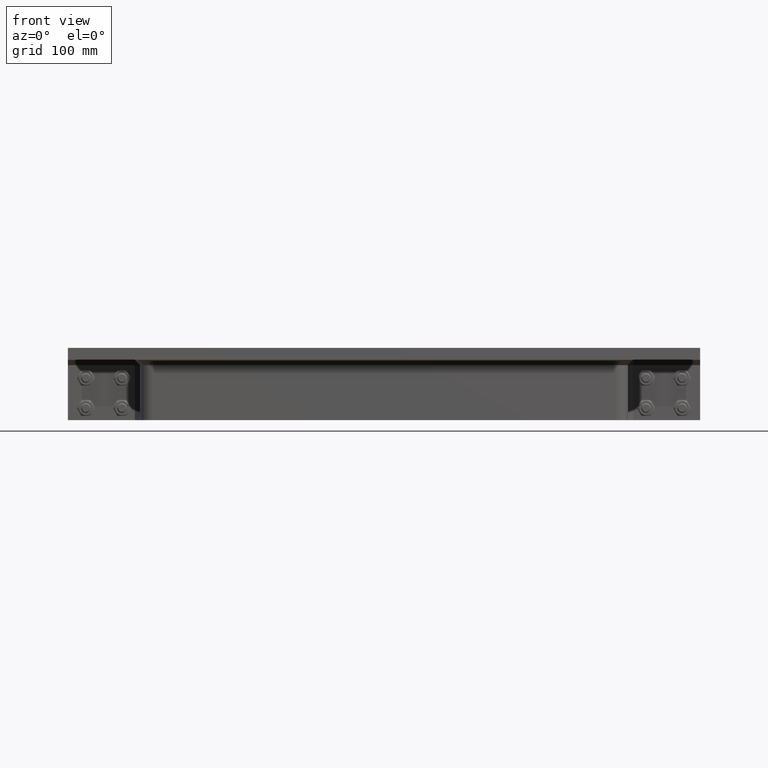
[diagram: clean part render]
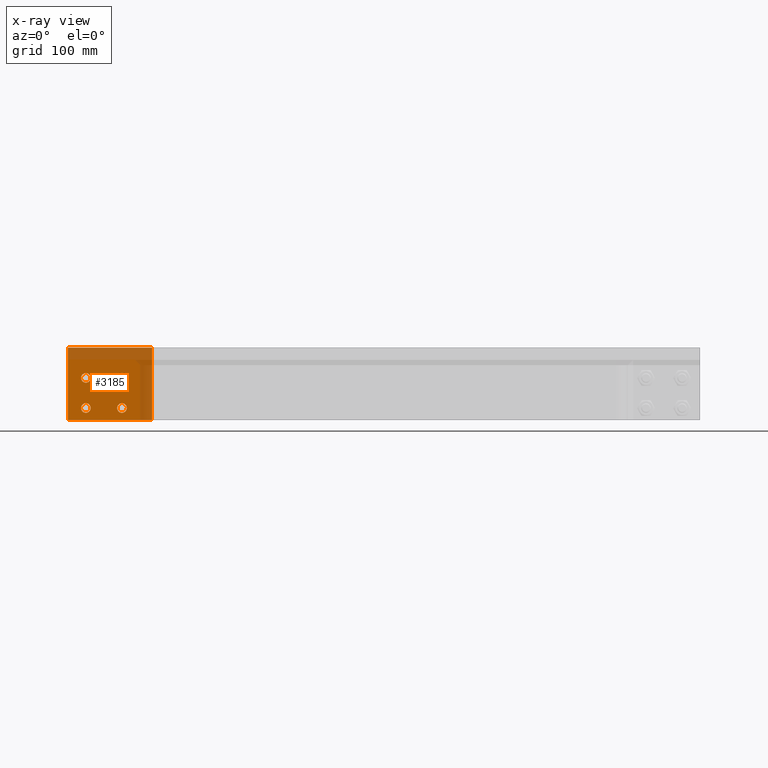
[diagram: x-ray — body ghosted, one internal face saturated and labeled with its STEP entity id]
A machine part, front view, then the same camera in x-ray: the body is ghosted and one INTERNAL B-rep face — a face not visible from any outside direction — is saturated and labeled: STEP entity #3185.
In plain terms, the highlighted planar face has unit normal (0, 1, 0).
Its self-contained STEP definition (entity closure, byte-faithful):
#333=FACE_BOUND('',#884,.T.);
#334=FACE_BOUND('',#885,.T.);
#335=FACE_BOUND('',#886,.T.);
#336=FACE_BOUND('',#887,.T.);
#448=CIRCLE('',#3665,4.);
#450=CIRCLE('',#3668,4.);
#452=CIRCLE('',#3671,4.);
#454=CIRCLE('',#3674,4.);
#626=FACE_OUTER_BOUND('',#883,.T.);
#883=EDGE_LOOP('',(#2707,#2708,#2709,#2710));
#884=EDGE_LOOP('',(#2711));
#885=EDGE_LOOP('',(#2712));
#886=EDGE_LOOP('',(#2713));
#887=EDGE_LOOP('',(#2714));
#1142=LINE('',#5330,#1385);
#1146=LINE('',#5338,#1389);
#1149=LINE('',#5344,#1392);
#1152=LINE('',#5349,#1395);
#1385=VECTOR('',#4413,10.);
#1389=VECTOR('',#4419,10.);
#1392=VECTOR('',#4424,10.);
#1395=VECTOR('',#4429,10.);
#1629=VERTEX_POINT('',#5306);
#1631=VERTEX_POINT('',#5312);
#1633=VERTEX_POINT('',#5318);
#1635=VERTEX_POINT('',#5324);
#1636=VERTEX_POINT('',#5328);
#1637=VERTEX_POINT('',#5329);
#1640=VERTEX_POINT('',#5337);
#1642=VERTEX_POINT('',#5343);
#1993=EDGE_CURVE('',#1629,#1629,#448,.T.);
#1996=EDGE_CURVE('',#1631,#1631,#450,.T.);
#1999=EDGE_CURVE('',#1633,#1633,#452,.T.);
#2002=EDGE_CURVE('',#1635,#1635,#454,.T.);
#2003=EDGE_CURVE('',#1636,#1637,#1142,.T.);
#2007=EDGE_CURVE('',#1637,#1640,#1146,.T.);
#2010=EDGE_CURVE('',#1640,#1642,#1149,.T.);
#2013=EDGE_CURVE('',#1642,#1636,#1152,.T.);
#2707=ORIENTED_EDGE('',*,*,#2013,.T.);
#2708=ORIENTED_EDGE('',*,*,#2003,.T.);
#2709=ORIENTED_EDGE('',*,*,#2007,.T.);
#2710=ORIENTED_EDGE('',*,*,#2010,.T.);
#2711=ORIENTED_EDGE('',*,*,#1993,.T.);
#2712=ORIENTED_EDGE('',*,*,#1996,.T.);
#2713=ORIENTED_EDGE('',*,*,#1999,.T.);
#2714=ORIENTED_EDGE('',*,*,#2002,.T.);
#3039=PLANE('',#3679);
#3185=ADVANCED_FACE('',(#626,#333,#334,#335,#336),#3039,.F.);
#3665=AXIS2_PLACEMENT_3D('',#5308,#4388,#4389);
#3668=AXIS2_PLACEMENT_3D('',#5314,#4395,#4396);
#3671=AXIS2_PLACEMENT_3D('',#5320,#4402,#4403);
#3674=AXIS2_PLACEMENT_3D('',#5326,#4409,#4410);
#3679=AXIS2_PLACEMENT_3D('',#5351,#4431,#4432);
#4388=DIRECTION('center_axis',(0.,0.,1.));
#4389=DIRECTION('ref_axis',(1.,0.,0.));
#4395=DIRECTION('center_axis',(0.,0.,1.));
#4396=DIRECTION('ref_axis',(1.,0.,0.));
#4402=DIRECTION('center_axis',(0.,0.,1.));
#4403=DIRECTION('ref_axis',(1.,0.,0.));
#4409=DIRECTION('center_axis',(0.,0.,1.));
#4410=DIRECTION('ref_axis',(1.,0.,0.));
#4413=DIRECTION('',(2.22044604925031E-16,-1.,0.));
#4419=DIRECTION('',(-1.,0.,0.));
#4424=DIRECTION('',(2.22044604925031E-16,1.,0.));
#4429=DIRECTION('',(1.,0.,0.));
#4431=DIRECTION('center_axis',(0.,0.,1.));
#4432=DIRECTION('ref_axis',(1.,0.,0.));
#5306=CARTESIAN_POINT('',(16.,-20.,0.));
#5308=CARTESIAN_POINT('Origin',(20.,-20.,0.));
#5312=CARTESIAN_POINT('',(-14.,5.00000000000001,0.));
#5314=CARTESIAN_POINT('Origin',(-9.99999999999997,5.00000000000001,0.));
#5318=CARTESIAN_POINT('',(16.,5.00000000000001,0.));
#5320=CARTESIAN_POINT('Origin',(20.,5.00000000000001,0.));
#5324=CARTESIAN_POINT('',(-14.,-20.,0.));
#5326=CARTESIAN_POINT('Origin',(-9.99999999999998,-20.,0.));
#5328=CARTESIAN_POINT('',(35.,30.,0.));
#5329=CARTESIAN_POINT('',(35.,-30.,0.));
#5330=CARTESIAN_POINT('',(35.,30.,0.));
#5337=CARTESIAN_POINT('',(-35.,-30.,0.));
#5338=CARTESIAN_POINT('',(35.,-30.,0.));
#5343=CARTESIAN_POINT('',(-35.,30.,0.));
#5344=CARTESIAN_POINT('',(-35.,-30.,0.));
#5349=CARTESIAN_POINT('',(-35.,30.,0.));
#5351=CARTESIAN_POINT('Origin',(0.,5.12410626750072E-15,0.));